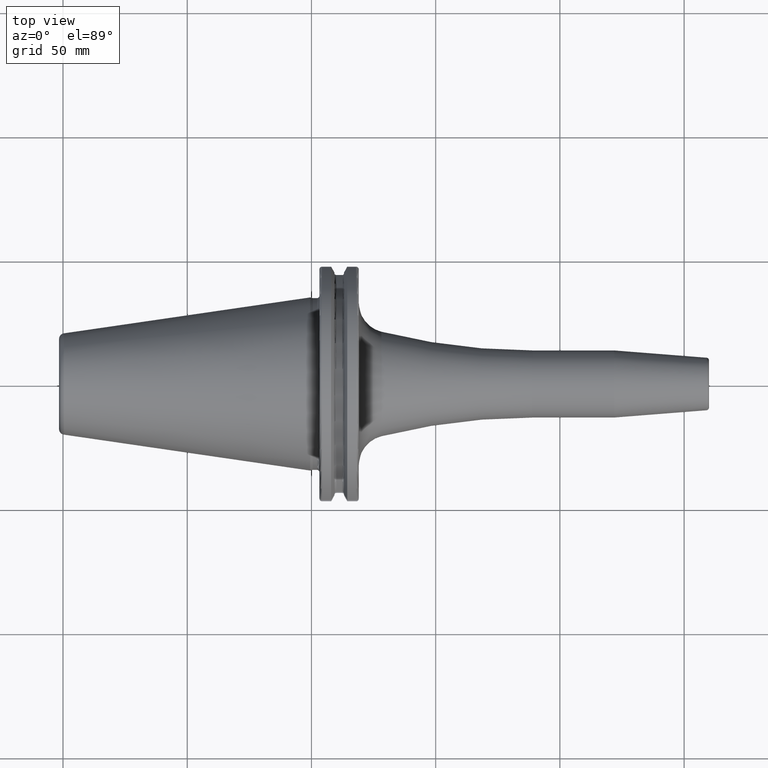
[diagram: clean part render]
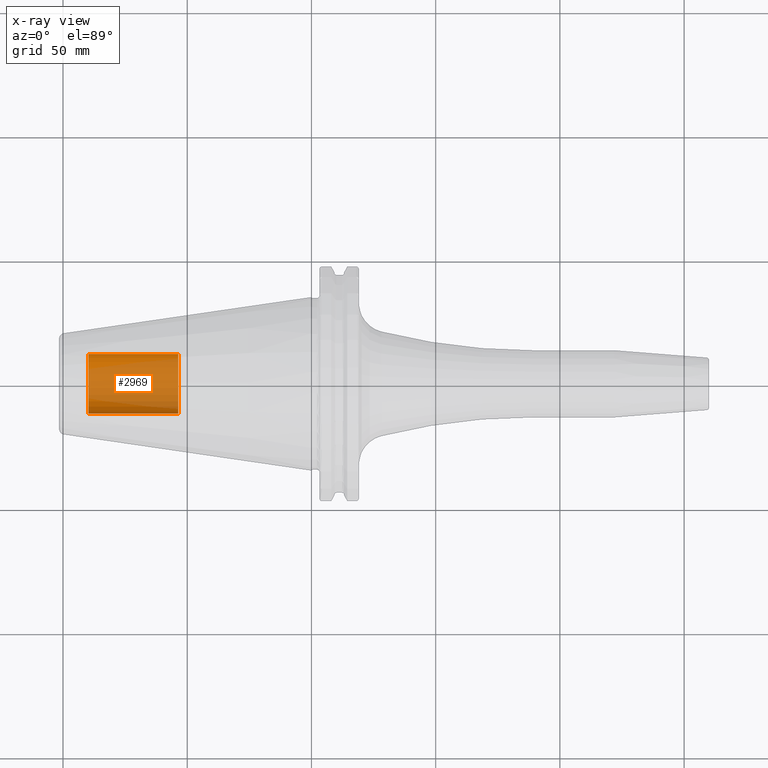
[diagram: x-ray — body ghosted, one internal face saturated and labeled with its STEP entity id]
A machine part, top view, then the same camera in x-ray: the body is ghosted and one INTERNAL B-rep face — a face not visible from any outside direction — is saturated and labeled: STEP entity #2969.
In plain terms, the highlighted cylindrical surface (edge-blend (fillet) strip) has radius 12.0032 mm, axis along (1, 0, 0).
Its self-contained STEP definition (entity closure, byte-faithful):
#2904=CARTESIAN_POINT('',(-8.985E1,0.E0,0.E0));
#2905=DIRECTION('',(-1.E0,0.E0,0.E0));
#2906=DIRECTION('',(0.E0,1.E0,0.E0));
#2907=AXIS2_PLACEMENT_3D('',#2904,#2905,#2906);
#2909=DIRECTION('',(1.E0,0.E0,0.E0));
#2910=VECTOR('',#2909,3.625E1);
#2911=CARTESIAN_POINT('',(-8.985E1,-1.200325E1,0.E0));
#2912=LINE('',#2911,#2910);
#2918=DIRECTION('',(1.E0,0.E0,0.E0));
#2919=VECTOR('',#2918,3.625E1);
#2920=CARTESIAN_POINT('',(-8.985E1,1.200325E1,0.E0));
#2921=LINE('',#2920,#2919);
#2927=CARTESIAN_POINT('',(-5.36E1,0.E0,0.E0));
#2928=DIRECTION('',(1.E0,0.E0,0.E0));
#2929=DIRECTION('',(0.E0,-1.E0,0.E0));
#2930=AXIS2_PLACEMENT_3D('',#2927,#2928,#2929);
#2942=CARTESIAN_POINT('',(-8.985E1,1.200325E1,0.E0));
#2943=CARTESIAN_POINT('',(-8.985E1,-1.200325E1,0.E0));
#2944=VERTEX_POINT('',#2942);
#2945=VERTEX_POINT('',#2943);
#2946=CARTESIAN_POINT('',(-5.36E1,1.200325E1,0.E0));
#2947=CARTESIAN_POINT('',(-5.36E1,-1.200325E1,0.E0));
#2948=VERTEX_POINT('',#2946);
#2949=VERTEX_POINT('',#2947);
#2954=CARTESIAN_POINT('',(-8.985E1,0.E0,0.E0));
#2955=DIRECTION('',(1.E0,0.E0,0.E0));
#2956=DIRECTION('',(0.E0,1.E0,0.E0));
#2957=AXIS2_PLACEMENT_3D('',#2954,#2955,#2956);
#2958=CYLINDRICAL_SURFACE('',#2957,1.200325E1);
#2960=ORIENTED_EDGE('',*,*,#2959,.T.);
#2962=ORIENTED_EDGE('',*,*,#2961,.T.);
#2964=ORIENTED_EDGE('',*,*,#2963,.T.);
#2966=ORIENTED_EDGE('',*,*,#2965,.F.);
#2967=EDGE_LOOP('',(#2960,#2962,#2964,#2966));
#2968=FACE_OUTER_BOUND('',#2967,.F.);
#2969=ADVANCED_FACE('',(#2968),#2958,.T.);
#2908=CIRCLE('',#2907,1.200325E1);
#2931=CIRCLE('',#2930,1.200325E1);
#2959=EDGE_CURVE('',#2944,#2945,#2908,.T.);
#2961=EDGE_CURVE('',#2945,#2949,#2912,.T.);
#2963=EDGE_CURVE('',#2949,#2948,#2931,.T.);
#2965=EDGE_CURVE('',#2944,#2948,#2921,.T.);